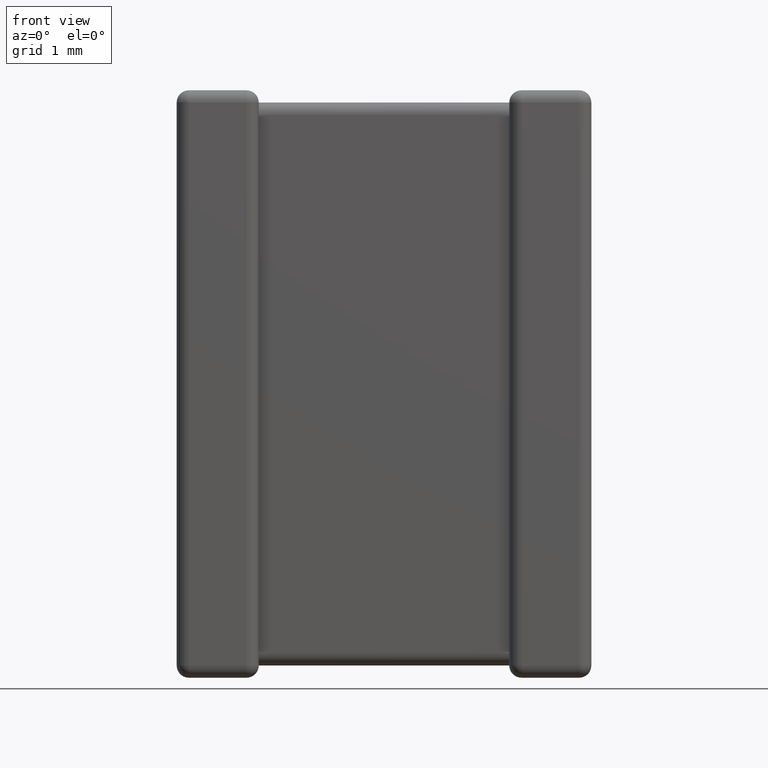
[diagram: clean part render]
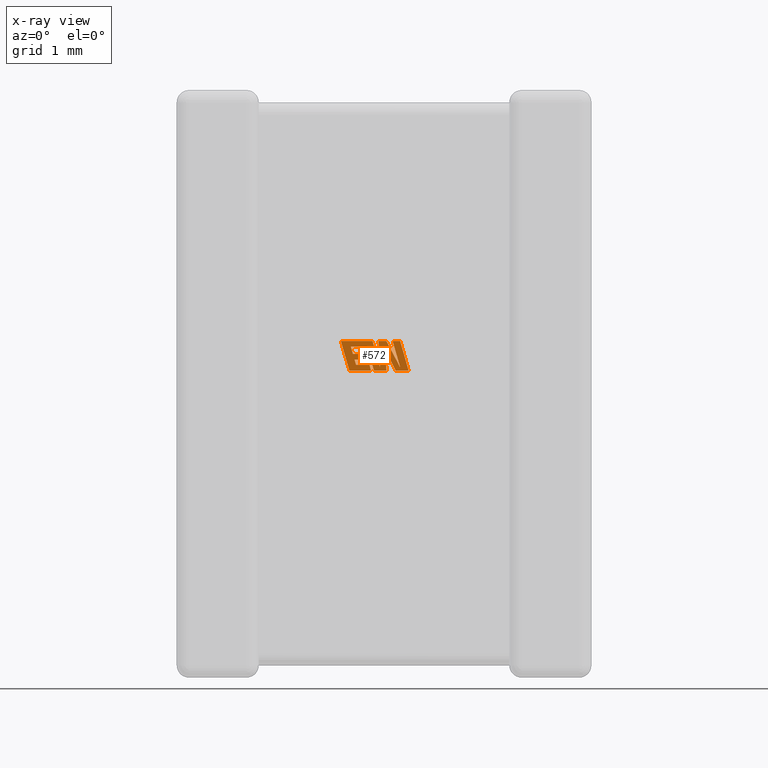
[diagram: x-ray — body ghosted, one internal face saturated and labeled with its STEP entity id]
A machine part, front view, then the same camera in x-ray: the body is ghosted and one INTERNAL B-rep face — a face not visible from any outside direction — is saturated and labeled: STEP entity #572.
In plain terms, the highlighted planar face has unit normal (0, -1, 0).
Its self-contained STEP definition (entity closure, byte-faithful):
#15 = VECTOR ( 'NONE', #3254, 1000.000000000000000 ) ;
#58 = CARTESIAN_POINT ( 'NONE',  ( 2.283309985301601200, 1.408559999999999600, -3.243961139434389900 ) ) ;
#136 = CARTESIAN_POINT ( 'NONE',  ( 2.076302815397430600, 1.408559999999999600, -3.179304578693128700 ) ) ;
#147 = EDGE_CURVE ( 'NONE', #2461, #3567, #4203, .T. ) ;
#161 = DIRECTION ( 'NONE',  ( 0.05375259206908433700, 0.0000000000000000000, -0.9985542843760946100 ) ) ;
#167 = VECTOR ( 'NONE', #2781, 1000.000000000000000 ) ;
#185 = EDGE_CURVE ( 'NONE', #1107, #3983, #2273, .T. ) ;
#208 = ORIENTED_EDGE ( 'NONE', *, *, #2683, .F. ) ;
#260 = DIRECTION ( 'NONE',  ( 0.4668459304955247000, 0.0000000000000000000, -0.8843386665637591500 ) ) ;
#276 = DIRECTION ( 'NONE',  ( 0.2763139702539146900, 0.0000000000000000000, -0.9610674221107063900 ) ) ;
#280 = CARTESIAN_POINT ( 'NONE',  ( 2.231065013678658700, 1.408559999999999600, -3.179304578693128700 ) ) ;
#283 = VECTOR ( 'NONE', #3638, 1000.000000000000000 ) ;
#366 = CARTESIAN_POINT ( 'NONE',  ( 2.414904999795341600, 1.408559999999999600, -3.001288569055292000 ) ) ;
#397 = VERTEX_POINT ( 'NONE', #954 ) ;
#400 = CARTESIAN_POINT ( 'NONE',  ( 2.206216014270969300, 1.408559999999999600, -2.904279999999999100 ) ) ;
#405 = CARTESIAN_POINT ( 'NONE',  ( 2.185777224738571200, 1.408559999999999600, -3.053328550032865500 ) ) ;
#416 = VECTOR ( 'NONE', #2167, 1000.000000000000000 ) ;
#451 = ORIENTED_EDGE ( 'NONE', *, *, #4143, .F. ) ;
#484 = CARTESIAN_POINT ( 'NONE',  ( 2.587525605018897100, 1.408559999999999600, -3.208145488616634300 ) ) ;
#489 = DIRECTION ( 'NONE',  ( -0.05596501978068185700, 0.0000000000000000000, 0.9984327301130245800 ) ) ;
#500 = CARTESIAN_POINT ( 'NONE',  ( 1.900737235964178500, 1.408559999999999600, -2.904279999999999100 ) ) ;
#530 = LINE ( 'NONE', #2221, #3225 ) ;
#535 = FACE_OUTER_BOUND ( 'NONE', #3648, .T. ) ;
#539 = CARTESIAN_POINT ( 'NONE',  ( 2.204248462135133000, 1.408559999999999600, -2.968904542828711100 ) ) ;
#572 = ADVANCED_FACE ( 'NONE', ( #535 ), #1797, .T. ) ;
#579 = CARTESIAN_POINT ( 'NONE',  ( 2.185777224738571200, 1.408559999999999600, -3.053328550032865500 ) ) ;
#583 = LINE ( 'NONE', #4174, #4526 ) ;
#587 = LINE ( 'NONE', #136, #2103 ) ;
#714 = DIRECTION ( 'NONE',  ( 0.0000000000000000000, -1.000000000000000000, 0.0000000000000000000 ) ) ;
#722 = ORIENTED_EDGE ( 'NONE', *, *, #3104, .F. ) ;
#734 = VECTOR ( 'NONE', #161, 1000.000000000000100 ) ;
#769 = VERTEX_POINT ( 'NONE', #484 ) ;
#782 = ORIENTED_EDGE ( 'NONE', *, *, #1057, .F. ) ;
#802 = VECTOR ( 'NONE', #2827, 1000.000000000000200 ) ;
#815 = VECTOR ( 'NONE', #2189, 1000.000000000000000 ) ;
#816 = LINE ( 'NONE', #2942, #3678 ) ;
#827 = ORIENTED_EDGE ( 'NONE', *, *, #3199, .F. ) ;
#855 = VECTOR ( 'NONE', #3713, 1000.000000000000000 ) ;
#857 = EDGE_CURVE ( 'NONE', #4600, #1978, #587, .T. ) ;
#866 = CARTESIAN_POINT ( 'NONE',  ( 2.414904999795341600, 1.408559999999999600, -3.001288569055292000 ) ) ;
#884 = EDGE_CURVE ( 'NONE', #769, #1409, #4530, .T. ) ;
#897 = VERTEX_POINT ( 'NONE', #500 ) ;
#954 = CARTESIAN_POINT ( 'NONE',  ( 2.266678228385733200, 1.408559999999999600, -2.904279999999999100 ) ) ;
#956 = ORIENTED_EDGE ( 'NONE', *, *, #185, .F. ) ;
#967 = CARTESIAN_POINT ( 'NONE',  ( 2.076302815397430600, 1.408559999999999600, -3.179304578693128700 ) ) ;
#979 = CARTESIAN_POINT ( 'NONE',  ( 2.587525605018897100, 1.408559999999999600, -3.208145488616634300 ) ) ;
#997 = VERTEX_POINT ( 'NONE', #366 ) ;
#1003 = CARTESIAN_POINT ( 'NONE',  ( 2.353508743258175200, 1.408559999999999600, -3.206689189985584900 ) ) ;
#1029 = CARTESIAN_POINT ( 'NONE',  ( 2.427968165099462900, 1.408559999999999600, -3.243961139434389900 ) ) ;
#1030 = CARTESIAN_POINT ( 'NONE',  ( 2.203713453135246200, 1.408559999999999600, -3.116123940465997900 ) ) ;
#1048 = DIRECTION ( 'NONE',  ( -1.000000000000000000, 0.0000000000000000000, 0.0000000000000000000 ) ) ;
#1057 = EDGE_CURVE ( 'NONE', #3042, #2283, #2213, .T. ) ;
#1063 = DIRECTION ( 'NONE',  ( 0.0000000000000000000, 0.0000000000000000000, -1.000000000000000000 ) ) ;
#1076 = CARTESIAN_POINT ( 'NONE',  ( 2.015948016215794800, 1.408559999999999600, -2.968904542828711100 ) ) ;
#1107 = VERTEX_POINT ( 'NONE', #3686 ) ;
#1126 = DIRECTION ( 'NONE',  ( 0.2746459304917039400, 0.0000000000000000000, -0.9615454294334439000 ) ) ;
#1146 = DIRECTION ( 'NONE',  ( -0.2762517575166415500, 0.0000000000000000000, 0.9610853065513833600 ) ) ;
#1152 = VECTOR ( 'NONE', #276, 1000.000000000000100 ) ;
#1241 = VECTOR ( 'NONE', #1126, 1000.000000000000000 ) ;
#1246 = LINE ( 'NONE', #3894, #2086 ) ;
#1391 = VERTEX_POINT ( 'NONE', #579 ) ;
#1399 = DIRECTION ( 'NONE',  ( 0.2793947940878428500, 0.0000000000000000000, -0.9601763114327555000 ) ) ;
#1409 = VERTEX_POINT ( 'NONE', #3794 ) ;
#1411 = EDGE_CURVE ( 'NONE', #1978, #2163, #4190, .T. ) ;
#1486 = LINE ( 'NONE', #2844, #15 ) ;
#1542 = CARTESIAN_POINT ( 'NONE',  ( 2.283309985301601200, 1.408559999999999600, -3.243961139434389900 ) ) ;
#1631 = ORIENTED_EDGE ( 'NONE', *, *, #2054, .F. ) ;
#1671 = CARTESIAN_POINT ( 'NONE',  ( 2.231065013678658700, 1.408559999999999600, -3.179304578693128700 ) ) ;
#1738 = CARTESIAN_POINT ( 'NONE',  ( 2.015948016215794800, 1.408559999999999600, -2.968904542828711100 ) ) ;
#1739 = EDGE_CURVE ( 'NONE', #1983, #2966, #2484, .T. ) ;
#1797 = PLANE ( 'NONE',  #2363 ) ;
#1801 = CARTESIAN_POINT ( 'NONE',  ( 2.535262653393774100, 1.408559999999999600, -3.243961139434389900 ) ) ;
#1822 = EDGE_CURVE ( 'NONE', #4564, #1983, #4462, .T. ) ;
#1872 = LINE ( 'NONE', #4271, #802 ) ;
#1900 = ORIENTED_EDGE ( 'NONE', *, *, #2964, .F. ) ;
#1902 = CARTESIAN_POINT ( 'NONE',  ( 2.204248462135133000, 1.408559999999999600, -2.968904542828711100 ) ) ;
#1978 = VERTEX_POINT ( 'NONE', #280 ) ;
#1980 = LINE ( 'NONE', #2854, #855 ) ;
#1983 = VERTEX_POINT ( 'NONE', #1738 ) ;
#1987 = VERTEX_POINT ( 'NONE', #1003 ) ;
#1994 = EDGE_CURVE ( 'NONE', #3567, #769, #1246, .T. ) ;
#2001 = EDGE_CURVE ( 'NONE', #397, #1987, #1872, .T. ) ;
#2047 = LINE ( 'NONE', #4319, #2104 ) ;
#2054 = EDGE_CURVE ( 'NONE', #2966, #1391, #2748, .T. ) ;
#2061 = VERTEX_POINT ( 'NONE', #1801 ) ;
#2086 = VECTOR ( 'NONE', #260, 1000.000000000000100 ) ;
#2103 = VECTOR ( 'NONE', #4093, 1000.000000000000000 ) ;
#2104 = VECTOR ( 'NONE', #1399, 1000.000000000000100 ) ;
#2125 = ORIENTED_EDGE ( 'NONE', *, *, #2378, .F. ) ;
#2163 = VERTEX_POINT ( 'NONE', #2503 ) ;
#2167 = DIRECTION ( 'NONE',  ( -1.000000000000000000, 0.0000000000000000000, 0.0000000000000000000 ) ) ;
#2189 = DIRECTION ( 'NONE',  ( 1.000000000000000000, 0.0000000000000000000, -2.459231407381525800E-015 ) ) ;
#2199 = CARTESIAN_POINT ( 'NONE',  ( 2.057918336216240500, 1.408559999999999600, -3.116123940465997900 ) ) ;
#2213 = LINE ( 'NONE', #4329, #416 ) ;
#2219 = VECTOR ( 'NONE', #3153, 1000.000000000000000 ) ;
#2221 = CARTESIAN_POINT ( 'NONE',  ( 1.998483793831818500, 1.408559999999999600, -3.243961139434389900 ) ) ;
#2268 = LINE ( 'NONE', #4298, #4021 ) ;
#2273 = LINE ( 'NONE', #2528, #1152 ) ;
#2283 = VERTEX_POINT ( 'NONE', #2199 ) ;
#2300 = ORIENTED_EDGE ( 'NONE', *, *, #4114, .F. ) ;
#2314 = VERTEX_POINT ( 'NONE', #2954 ) ;
#2341 = ORIENTED_EDGE ( 'NONE', *, *, #3384, .F. ) ;
#2363 = AXIS2_PLACEMENT_3D ( 'NONE', #4655, #714, #1063 ) ;
#2374 = LINE ( 'NONE', #58, #2760 ) ;
#2378 = EDGE_CURVE ( 'NONE', #1987, #2461, #583, .T. ) ;
#2461 = VERTEX_POINT ( 'NONE', #4671 ) ;
#2484 = LINE ( 'NONE', #1076, #3675 ) ;
#2503 = CARTESIAN_POINT ( 'NONE',  ( 2.249428836141701200, 1.408559999999999600, -3.243961139434389900 ) ) ;
#2528 = CARTESIAN_POINT ( 'NONE',  ( 2.586583658669892500, 1.408559999999999600, -2.904279999999999100 ) ) ;
#2579 = DIRECTION ( 'NONE',  ( -1.000000000000000000, 0.0000000000000000000, 0.0000000000000000000 ) ) ;
#2655 = VECTOR ( 'NONE', #4141, 1000.000000000000000 ) ;
#2683 = EDGE_CURVE ( 'NONE', #2934, #897, #530, .T. ) ;
#2704 = EDGE_CURVE ( 'NONE', #897, #397, #4129, .T. ) ;
#2748 = LINE ( 'NONE', #3127, #167 ) ;
#2760 = VECTOR ( 'NONE', #1146, 1000.000000000000100 ) ;
#2781 = DIRECTION ( 'NONE',  ( 1.000000000000000000, 0.0000000000000000000, 0.0000000000000000000 ) ) ;
#2800 = CARTESIAN_POINT ( 'NONE',  ( 2.427113794315285400, 1.408559999999999600, -2.904279999999999100 ) ) ;
#2827 = DIRECTION ( 'NONE',  ( 0.2759782365590801000, 0.0000000000000000000, -0.9611638845408936300 ) ) ;
#2844 = CARTESIAN_POINT ( 'NONE',  ( 2.500265430408417100, 1.408559999999999600, -2.904279999999999100 ) ) ;
#2854 = CARTESIAN_POINT ( 'NONE',  ( 2.684244490884303900, 1.408559999999999600, -3.243961139434389900 ) ) ;
#2877 = VECTOR ( 'NONE', #2579, 1000.000000000000000 ) ;
#2882 = DIRECTION ( 'NONE',  ( -0.2765379750249969400, 0.0000000000000000000, 0.9610029908221275900 ) ) ;
#2902 = ORIENTED_EDGE ( 'NONE', *, *, #4261, .F. ) ;
#2923 = LINE ( 'NONE', #866, #734 ) ;
#2934 = VERTEX_POINT ( 'NONE', #3800 ) ;
#2942 = CARTESIAN_POINT ( 'NONE',  ( 2.535262653393774100, 1.408559999999999600, -3.243961139434389900 ) ) ;
#2954 = CARTESIAN_POINT ( 'NONE',  ( 2.427968165099462900, 1.408559999999999600, -3.243961139434389900 ) ) ;
#2964 = EDGE_CURVE ( 'NONE', #2314, #3247, #4068, .T. ) ;
#2966 = VERTEX_POINT ( 'NONE', #4638 ) ;
#3017 = ORIENTED_EDGE ( 'NONE', *, *, #1411, .F. ) ;
#3023 = ORIENTED_EDGE ( 'NONE', *, *, #1994, .F. ) ;
#3042 = VERTEX_POINT ( 'NONE', #1030 ) ;
#3104 = EDGE_CURVE ( 'NONE', #1391, #3042, #3553, .T. ) ;
#3127 = CARTESIAN_POINT ( 'NONE',  ( 2.040002764537733000, 1.408559999999999600, -3.053328550032865500 ) ) ;
#3153 = DIRECTION ( 'NONE',  ( 1.000000000000000000, 0.0000000000000000000, 0.0000000000000000000 ) ) ;
#3199 = EDGE_CURVE ( 'NONE', #3983, #2061, #1980, .T. ) ;
#3225 = VECTOR ( 'NONE', #2882, 1000.000000000000000 ) ;
#3247 = VERTEX_POINT ( 'NONE', #1542 ) ;
#3254 = DIRECTION ( 'NONE',  ( 1.000000000000000000, 0.0000000000000000000, 0.0000000000000000000 ) ) ;
#3300 = DIRECTION ( 'NONE',  ( -0.4443210308329503800, 0.0000000000000000000, 0.8958676361826809500 ) ) ;
#3305 = ORIENTED_EDGE ( 'NONE', *, *, #3592, .F. ) ;
#3326 = ORIENTED_EDGE ( 'NONE', *, *, #147, .F. ) ;
#3384 = EDGE_CURVE ( 'NONE', #997, #2314, #2923, .T. ) ;
#3519 = DIRECTION ( 'NONE',  ( -0.2760118818968593200, 0.0000000000000000000, 0.9611542233438680200 ) ) ;
#3545 = CARTESIAN_POINT ( 'NONE',  ( 2.684244490884303900, 1.408559999999999600, -3.243961139434389900 ) ) ;
#3553 = LINE ( 'NONE', #405, #1241 ) ;
#3567 = VERTEX_POINT ( 'NONE', #2800 ) ;
#3592 = EDGE_CURVE ( 'NONE', #2283, #4600, #2047, .T. ) ;
#3597 = ORIENTED_EDGE ( 'NONE', *, *, #857, .F. ) ;
#3607 = DIRECTION ( 'NONE',  ( 0.2740217765953990600, 0.0000000000000000000, -0.9617234872620618000 ) ) ;
#3638 = DIRECTION ( 'NONE',  ( -1.000000000000000000, 0.0000000000000000000, 0.0000000000000000000 ) ) ;
#3648 = EDGE_LOOP ( 'NONE', ( #827, #956, #2300, #3992, #3023, #3326, #2125, #4519, #4320, #208, #451, #3017, #3597, #3305, #782, #722, #1631, #4151, #4609, #3777, #1900, #2341, #2902 ) ) ;
#3675 = VECTOR ( 'NONE', #3607, 1000.000000000000200 ) ;
#3678 = VECTOR ( 'NONE', #3300, 999.9999999999998900 ) ;
#3686 = CARTESIAN_POINT ( 'NONE',  ( 2.586583658669892500, 1.408559999999999600, -2.904279999999999100 ) ) ;
#3713 = DIRECTION ( 'NONE',  ( -1.000000000000000000, 0.0000000000000000000, 0.0000000000000000000 ) ) ;
#3777 = ORIENTED_EDGE ( 'NONE', *, *, #4217, .F. ) ;
#3794 = CARTESIAN_POINT ( 'NONE',  ( 2.500265430408417100, 1.408559999999999600, -2.904279999999999100 ) ) ;
#3800 = CARTESIAN_POINT ( 'NONE',  ( 1.998483793831818500, 1.408559999999999600, -3.243961139434389900 ) ) ;
#3801 = VECTOR ( 'NONE', #3519, 1000.000000000000200 ) ;
#3894 = CARTESIAN_POINT ( 'NONE',  ( 2.427113794315285400, 1.408559999999999600, -2.904279999999999100 ) ) ;
#3983 = VERTEX_POINT ( 'NONE', #3545 ) ;
#3992 = ORIENTED_EDGE ( 'NONE', *, *, #884, .F. ) ;
#4021 = VECTOR ( 'NONE', #1048, 1000.000000000000000 ) ;
#4068 = LINE ( 'NONE', #1029, #283 ) ;
#4093 = DIRECTION ( 'NONE',  ( 1.000000000000000000, 0.0000000000000000000, 0.0000000000000000000 ) ) ;
#4114 = EDGE_CURVE ( 'NONE', #1409, #1107, #1486, .T. ) ;
#4129 = LINE ( 'NONE', #400, #815 ) ;
#4141 = DIRECTION ( 'NONE',  ( 0.2732148821746424600, 0.0000000000000000000, -0.9619530280415443700 ) ) ;
#4143 = EDGE_CURVE ( 'NONE', #2163, #2934, #2268, .T. ) ;
#4151 = ORIENTED_EDGE ( 'NONE', *, *, #1739, .F. ) ;
#4174 = CARTESIAN_POINT ( 'NONE',  ( 2.353508743258175200, 1.408559999999999600, -3.206689189985584900 ) ) ;
#4190 = LINE ( 'NONE', #1671, #2655 ) ;
#4203 = LINE ( 'NONE', #4590, #2219 ) ;
#4217 = EDGE_CURVE ( 'NONE', #3247, #4564, #2374, .T. ) ;
#4261 = EDGE_CURVE ( 'NONE', #2061, #997, #816, .T. ) ;
#4271 = CARTESIAN_POINT ( 'NONE',  ( 2.266678228385733200, 1.408559999999999600, -2.904279999999999100 ) ) ;
#4298 = CARTESIAN_POINT ( 'NONE',  ( 2.249428836141701200, 1.408559999999999600, -3.243961139434389900 ) ) ;
#4319 = CARTESIAN_POINT ( 'NONE',  ( 2.057918336216240500, 1.408559999999999600, -3.116123940465997900 ) ) ;
#4320 = ORIENTED_EDGE ( 'NONE', *, *, #2704, .F. ) ;
#4329 = CARTESIAN_POINT ( 'NONE',  ( 2.203713453135246200, 1.408559999999999600, -3.116123940465997900 ) ) ;
#4462 = LINE ( 'NONE', #1902, #2877 ) ;
#4519 = ORIENTED_EDGE ( 'NONE', *, *, #2001, .F. ) ;
#4526 = VECTOR ( 'NONE', #489, 1000.000000000000200 ) ;
#4530 = LINE ( 'NONE', #979, #3801 ) ;
#4564 = VERTEX_POINT ( 'NONE', #539 ) ;
#4590 = CARTESIAN_POINT ( 'NONE',  ( 2.336557840319037900, 1.408559999999999600, -2.904279999999999100 ) ) ;
#4600 = VERTEX_POINT ( 'NONE', #967 ) ;
#4609 = ORIENTED_EDGE ( 'NONE', *, *, #1822, .F. ) ;
#4638 = CARTESIAN_POINT ( 'NONE',  ( 2.040002764537733000, 1.408559999999999600, -3.053328550032865500 ) ) ;
#4655 = CARTESIAN_POINT ( 'NONE',  ( -0.0003184538148652636000, 1.408559999999999100, -1.761969402005289200 ) ) ;
#4671 = CARTESIAN_POINT ( 'NONE',  ( 2.336557840319037900, 1.408559999999999600, -2.904279999999999100 ) ) ;